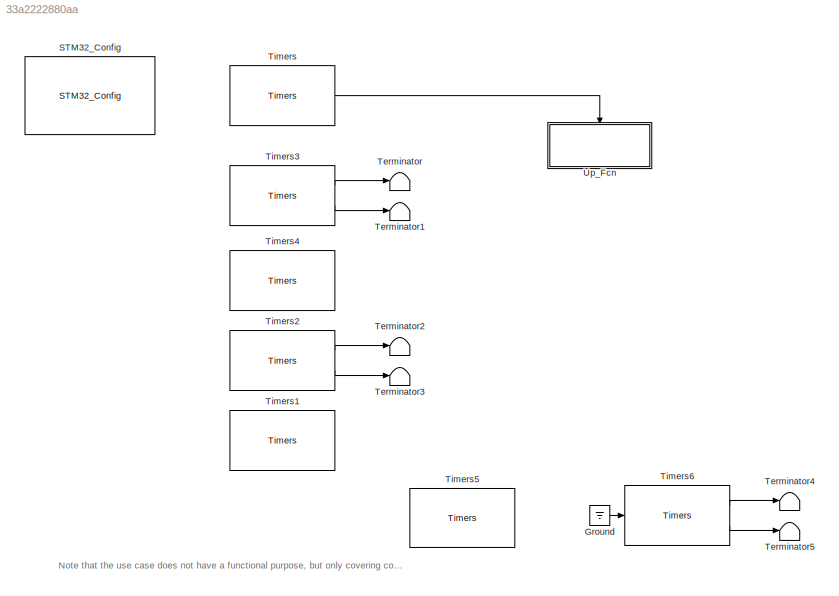
MODEL slx_33a2222880aa
KIND model
CONFIG AbsTol = auto
CONFIG EnableMultiTasking = off
CONFIG FixedStep = auto
CONFIG MaxStep = auto
CONFIG MinStep = auto
CONFIG RelTol = 1e-3
CONFIG SampleTimeConstraint = Unconstrained
CONFIG Solver = FixedStepDiscrete
CONFIG SolverName = FixedStepDiscrete
CONFIG StartTime = 0.0
CONFIG StopTime = 10.0
BLOCK [Ground] Ground
BLOCK [Reference] STM32_Config  REF=STM32_Config_Lib/STM32_Config
  Ports = []
  Priority = 0
  SourceBlock = STM32_Config_Lib/STM32_Config
  SourceProductName = Target Support Package - STM32 Adapter
  SourceType = STM32_Config
BLOCK [Terminator] Terminator
BLOCK [Terminator] Terminator1
BLOCK [Terminator] Terminator2
BLOCK [Terminator] Terminator3
BLOCK [Terminator] Terminator4
BLOCK [Terminator] Terminator5
BLOCK [Reference] Timers  REF=TIMERS_Lib/Timers
  Ports = [0, 1]
  SourceBlock = TIMERS_Lib/Timers
  SourceProductName = Target Support Package - STM32 Adapter
  SourceType = Timers
BLOCK [Reference] Timers1  REF=TIMERS_Lib/Timers
  Ports = []
  SourceBlock = TIMERS_Lib/Timers
  SourceProductName = Target Support Package - STM32 Adapter
  SourceType = Timers
BLOCK [Reference] Timers2  REF=TIMERS_Lib/Timers
  Ports = [0, 2]
  SourceBlock = TIMERS_Lib/Timers
  SourceProductName = Target Support Package - STM32 Adapter
  SourceType = Timers
BLOCK [Reference] Timers3  REF=TIMERS_Lib/Timers
  Ports = [0, 2]
  SourceBlock = TIMERS_Lib/Timers
  SourceProductName = Target Support Package - STM32 Adapter
  SourceType = Timers
BLOCK [Reference] Timers4  REF=TIMERS_Lib/Timers
  Ports = []
  SourceBlock = TIMERS_Lib/Timers
  SourceProductName = Target Support Package - STM32 Adapter
  SourceType = Timers
BLOCK [Reference] Timers5  REF=TIMERS_Lib/Timers
  Ports = []
  SourceBlock = TIMERS_Lib/Timers
  SourceProductName = Target Support Package - STM32 Adapter
  SourceType = Timers
BLOCK [Reference] Timers6  REF=TIMERS_Lib/Timers
  Ports = [1, 2]
  SourceBlock = TIMERS_Lib/Timers
  SourceProductName = Target Support Package - STM32 Adapter
  SourceType = Timers
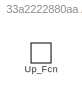
BLOCK [SubSystem] Up_Fcn 
  Ports = [0, 0, 0, 1]
  RequestExecContextInheritance = off
  TreatAsAtomicUnit = on
BLOCK [TriggerPort] Up_Fcn /Up_Fcn
  Ports = []
  StatesWhenEnabling = held
  TriggerType = function-call
  VariantControl = Variant
ANNOTATION (root): Note that the use case does not have a functional purpose, but only covering configurations.
LINE Ground:1 -> Timers6:1
LINE Timers2:1 -> Terminator2:1
LINE Timers2:2 -> Terminator3:1
LINE Timers3:1 -> Terminator:1
LINE Timers3:2 -> Terminator1:1
LINE Timers6:1 -> Terminator4:1
LINE Timers6:2 -> Terminator5:1
LINE Timers:1 -> Up_Fcn :trigger
